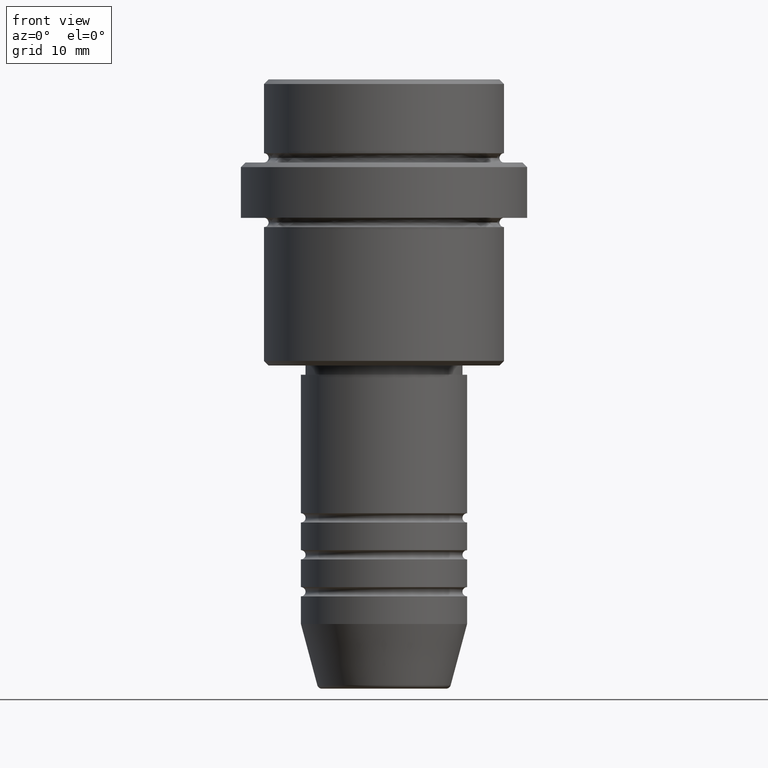
[diagram: clean part render]
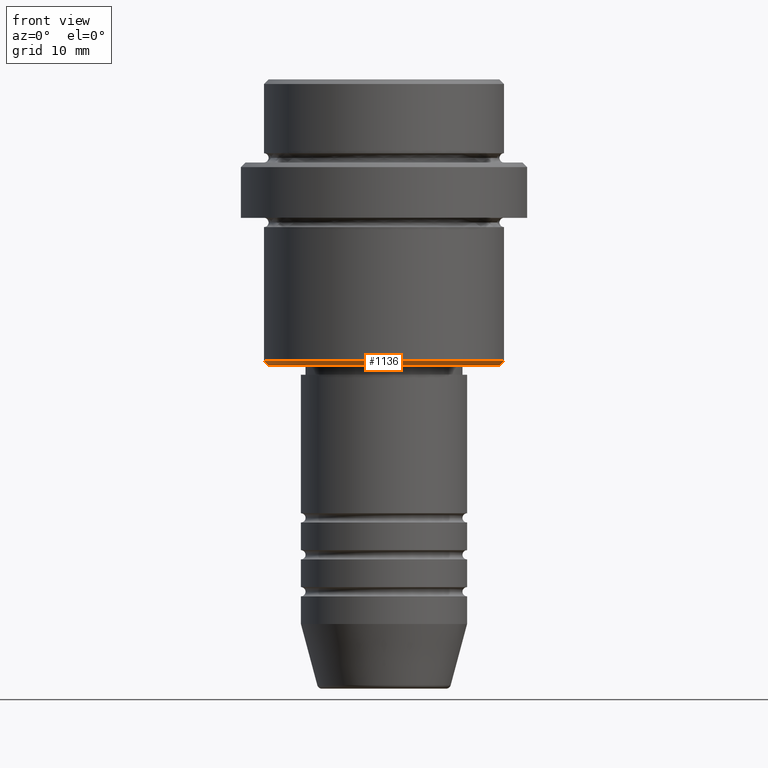
[diagram: same view with one face highlighted and labeled with its STEP entity id]
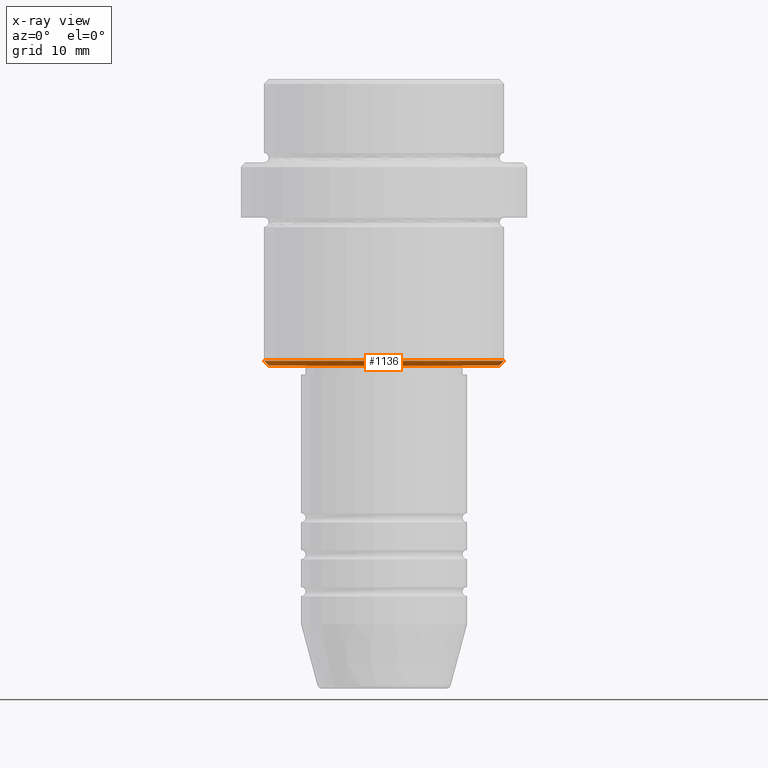
[diagram: x-ray of the same camera — body ghosted, the highlighted face saturated]
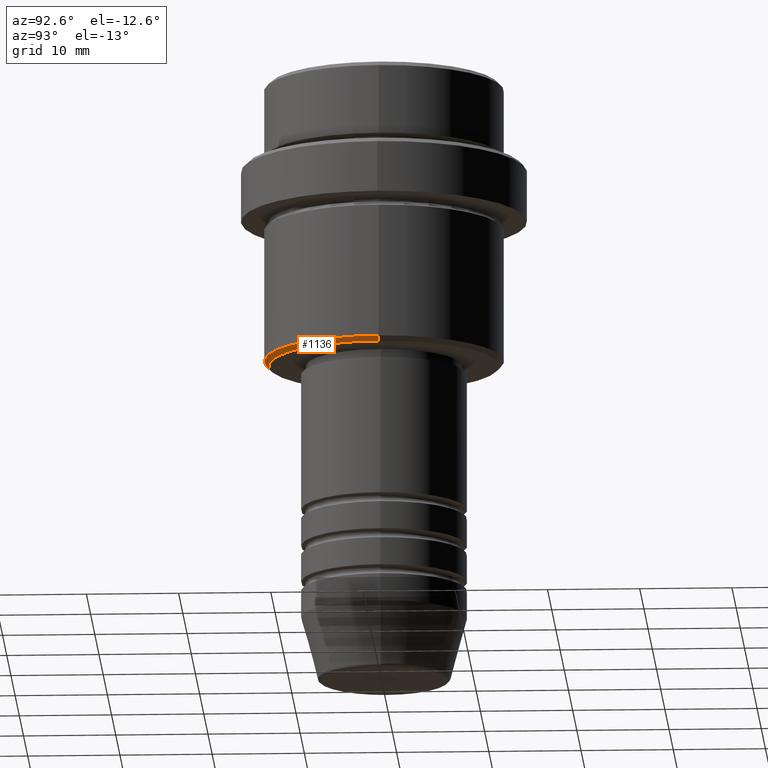
[diagram: same view with one face highlighted and labeled with its STEP entity id]
A machine part, front view. The second image highlights one B-rep face of the part: STEP entity #1136.
The next image is the same camera in x-ray: the body ghosted, the highlighted face saturated — about 0% of this face is hidden behind the body in this view.
A second angle (auxiliary view) of the same face is appended — the face is thin or edge-on in the first view.
In plain terms, the highlighted conical surface has half-angle 45 deg.
Its self-contained STEP definition (entity closure, byte-faithful):
#10 = EDGE_CURVE ( 'NONE', #133, #490, #817, .T. ) ;
#25 = DIRECTION ( 'NONE',  ( -0.000000000000000000, -0.000000000000000000, 1.000000000000000000 ) ) ;
#40 = ORIENTED_EDGE ( 'NONE', *, *, #10, .F. ) ;
#41 = CARTESIAN_POINT ( 'NONE',  ( -12.49999999999998401, 1.561424668912874125E-15, -31.00000000000000000 ) ) ;
#60 = VECTOR ( 'NONE', #1059, 1000.000000000000000 ) ;
#75 = CONICAL_SURFACE ( 'NONE', #1057, 13.00000000000000000, 0.7853981633974500554 ) ;
#124 = CIRCLE ( 'NONE', #555, 12.49999999999998401 ) ;
#133 = VERTEX_POINT ( 'NONE', #1090 ) ;
#208 = AXIS2_PLACEMENT_3D ( 'NONE', #1133, #25, #1332 ) ;
#246 = EDGE_CURVE ( 'NONE', #1260, #133, #664, .T. ) ;
#256 = ORIENTED_EDGE ( 'NONE', *, *, #410, .T. ) ;
#257 = CARTESIAN_POINT ( 'NONE',  ( 12.49999999999998401, 0.000000000000000000, -31.00000000000000000 ) ) ;
#292 = DIRECTION ( 'NONE',  ( -0.000000000000000000, -0.000000000000000000, 1.000000000000000000 ) ) ;
#306 = CARTESIAN_POINT ( 'NONE',  ( 13.00000000000000000, 0.000000000000000000, -30.49999999999998579 ) ) ;
#335 = CARTESIAN_POINT ( 'NONE',  ( 13.00000000000000000, 0.000000000000000000, -30.49999999999998579 ) ) ;
#337 = ORIENTED_EDGE ( 'NONE', *, *, #246, .F. ) ;
#410 = EDGE_CURVE ( 'NONE', #698, #490, #426, .T. ) ;
#413 = VECTOR ( 'NONE', #1101, 1000.000000000000000 ) ;
#426 = LINE ( 'NONE', #306, #60 ) ;
#455 = DIRECTION ( 'NONE',  ( -1.000000000000000000, 0.000000000000000000, 0.000000000000000000 ) ) ;
#490 = VERTEX_POINT ( 'NONE', #335 ) ;
#555 = AXIS2_PLACEMENT_3D ( 'NONE', #791, #1224, #455 ) ;
#664 = LINE ( 'NONE', #1319, #413 ) ;
#697 = EDGE_LOOP ( 'NONE', ( #337, #870, #256, #40 ) ) ;
#698 = VERTEX_POINT ( 'NONE', #257 ) ;
#791 = CARTESIAN_POINT ( 'NONE',  ( 0.000000000000000000, 0.000000000000000000, -31.00000000000000000 ) ) ;
#817 = CIRCLE ( 'NONE', #208, 13.00000000000000000 ) ;
#870 = ORIENTED_EDGE ( 'NONE', *, *, #1272, .F. ) ;
#948 = FACE_OUTER_BOUND ( 'NONE', #697, .T. ) ;
#1057 = AXIS2_PLACEMENT_3D ( 'NONE', #1416, #292, #1406 ) ;
#1059 = DIRECTION ( 'NONE',  ( 0.7071067811865487940, 0.000000000000000000, 0.7071067811865463515 ) ) ;
#1090 = CARTESIAN_POINT ( 'NONE',  ( -13.00000000000000000, 1.592040838891559095E-15, -30.49999999999998579 ) ) ;
#1101 = DIRECTION ( 'NONE',  ( -0.7071067811865487940, 8.659560562354948882E-17, 0.7071067811865463515 ) ) ;
#1133 = CARTESIAN_POINT ( 'NONE',  ( 0.000000000000000000, 0.000000000000000000, -30.49999999999998579 ) ) ;
#1136 = ADVANCED_FACE ( 'NONE', ( #948 ), #75, .T. ) ;
#1224 = DIRECTION ( 'NONE',  ( 0.000000000000000000, 0.000000000000000000, -1.000000000000000000 ) ) ;
#1260 = VERTEX_POINT ( 'NONE', #41 ) ;
#1272 = EDGE_CURVE ( 'NONE', #698, #1260, #124, .T. ) ;
#1319 = CARTESIAN_POINT ( 'NONE',  ( -13.00000000000000000, 1.592040838891559095E-15, -30.49999999999998579 ) ) ;
#1332 = DIRECTION ( 'NONE',  ( -1.000000000000000000, 0.000000000000000000, 0.000000000000000000 ) ) ;
#1406 = DIRECTION ( 'NONE',  ( 1.000000000000000000, 0.000000000000000000, 0.000000000000000000 ) ) ;
#1416 = CARTESIAN_POINT ( 'NONE',  ( 0.000000000000000000, 0.000000000000000000, -30.49999999999998579 ) ) ;